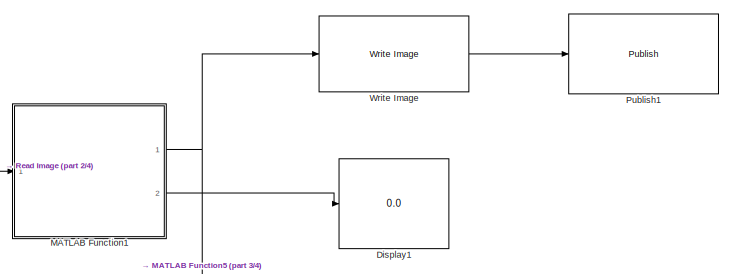
[diagram: root canvas - part 1/4, top center region]
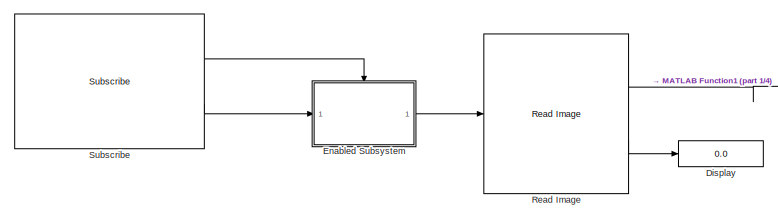
[diagram: root canvas - part 2/4, top left region]
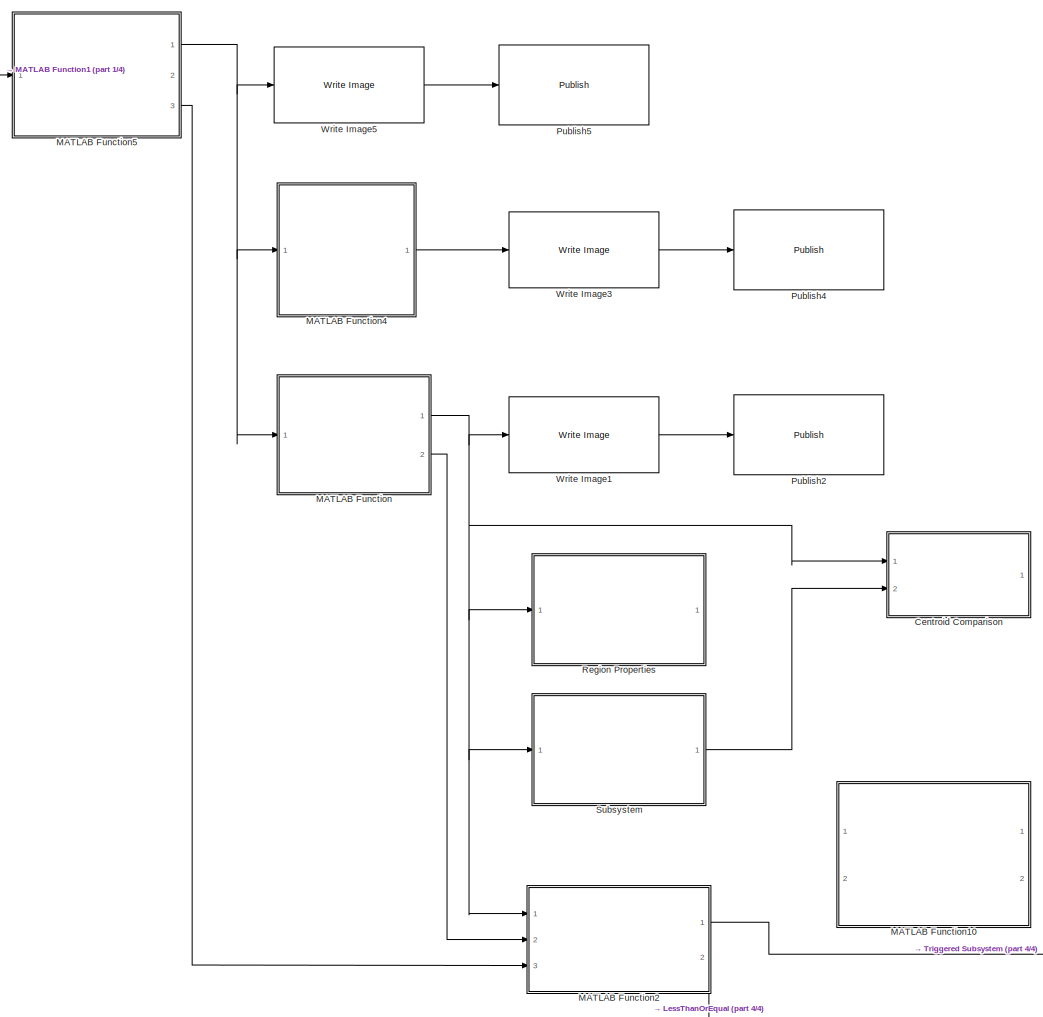
[diagram: root canvas - part 3/4, central region]
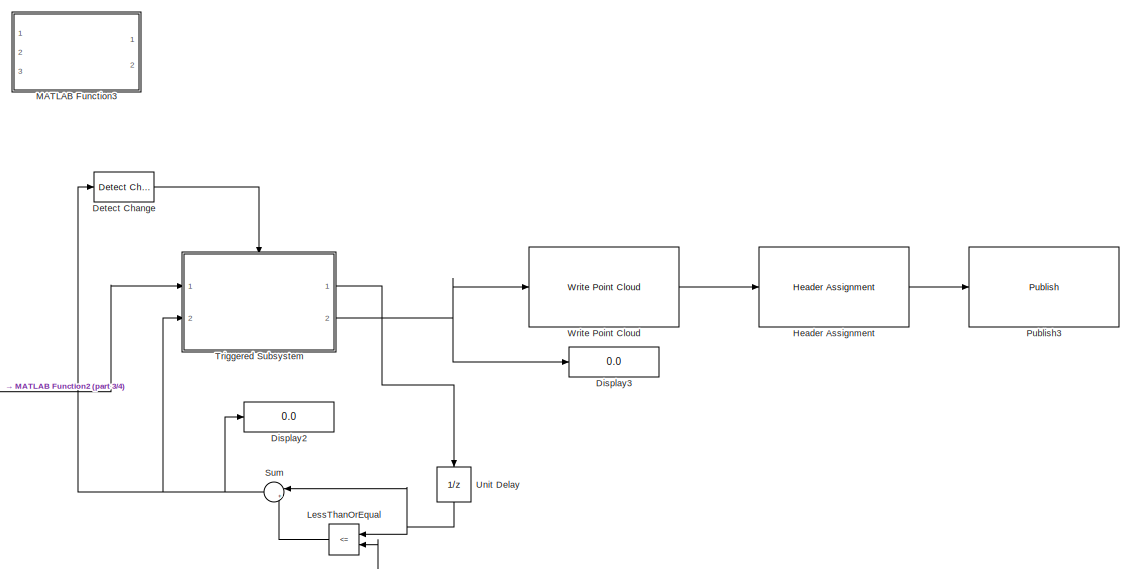
[diagram: root canvas - part 4/4, bottom right region]
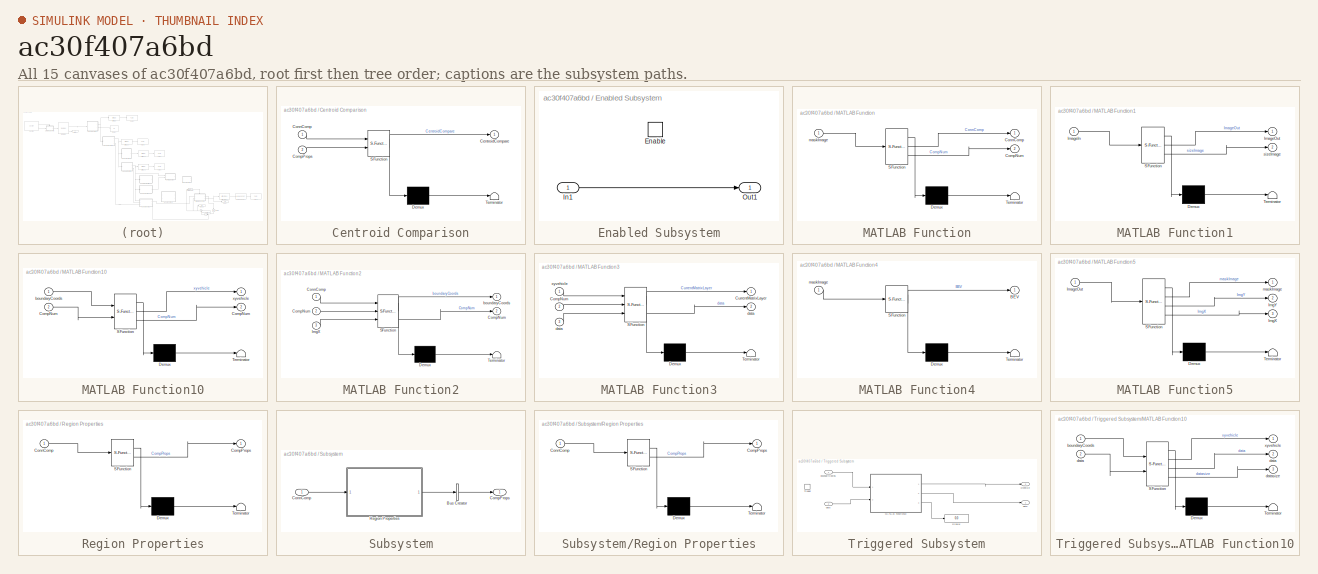
[diagram: thumbnail index - all 15 canvases of the model, root first then tree order]
MODEL slx_ac30f407a6bd
KIND model
CONFIG AbsTol = auto
CONFIG EnableMultiTasking = off
CONFIG FixedStep = auto
CONFIG MaxStep = auto
CONFIG MinStep = auto
CONFIG RelTol = 1e-3
CONFIG SampleTimeConstraint = Unconstrained
CONFIG SolverName = VariableStepAuto
CONFIG StartTime = 0.0
CONFIG StopTime = inf
WORKSPACE source: mxarray member
WORKSPACE SL_ROS_VariableLengthArrays_MaxSizes: object (value not decoded)
BLOCK [SubSystem] Centroid Comparison
  Commented = on
  ErrorFcn = Stateflow.Translate.translate
  PermitHierarchicalResolution = ExplicitOnly
  Ports = [2, 1]
  RequestExecContextInheritance = off
  SFBlockType = MATLAB Function
  TreatAsAtomicUnit = on
BLOCK [Demux] Centroid Comparison/ Demux 
  Outputs = 1
  Ports = [1, 1]
BLOCK [S-Function] Centroid Comparison/ SFunction 
  EnableBusSupport = on
  FunctionName = sf_sfun
  PortCounts = [2 2]
  Ports = [2, 2]
  SFcnIsStateOwnerBlock = off
  SFunctionDeploymentMode = off
  Tag = Stateflow S-Function 6
BLOCK [Terminator] Centroid Comparison/ Terminator 
BLOCK [Outport] Centroid Comparison/CentroidCompare
BLOCK [Inport] Centroid Comparison/CompProps
  Port = 2
BLOCK [Inport] Centroid Comparison/ConnComp
BLOCK [Reference] Detect Change  REF=simulink/Logic and Bit
Operations/Detect
Change
  Ports = [1, 1]
  SourceBlock = simulink/Logic and Bit\nOperations/Detect\nChange
  SourceProductBaseCode = SL
  SourceType = Detect Change
BLOCK [Display] Display
  Decimation = 1
  Ports = [1]
BLOCK [Display] Display1
  Decimation = 1
  Ports = [1]
BLOCK [Display] Display2
  Decimation = 1
  Ports = [1]
BLOCK [Display] Display3
  Decimation = 1
  Ports = [1]
BLOCK [SubSystem] Enabled Subsystem
  Ports = [1, 1, 1]
  RequestExecContextInheritance = off
  TreatAsAtomicUnit = on
BLOCK [EnablePort] Enabled Subsystem/Enable
  Ports = []
BLOCK [Inport] Enabled Subsystem/In1
BLOCK [Outport] Enabled Subsystem/Out1
BLOCK [Reference] Header Assignment  REF=robotlib/Header Assignment
  Ports = [1, 1]
  SourceBlock = robotlib/Header Assignment
  SourceProductBaseCode = RR
  SourceType = ROS Header
BLOCK [RelationalOperator] LessThanOrEqual
  InputSameDT = off
  NameLocation = top
  Operator = <=
  OutDataTypeStr = boolean
  Ports = [2, 1]
  RndMeth = Simplest
BLOCK [SubSystem] MATLAB Function
  ErrorFcn = Stateflow.Translate.translate
  PermitHierarchicalResolution = ExplicitOnly
  Ports = [1, 2]
  RequestExecContextInheritance = off
  SFBlockType = MATLAB Function
  TreatAsAtomicUnit = on
BLOCK [Demux] MATLAB Function/ Demux 
  Outputs = 1
  Ports = [1, 1]
BLOCK [S-Function] MATLAB Function/ SFunction 
  EnableBusSupport = on
  FunctionName = sf_sfun
  PortCounts = [1 3]
  Ports = [1, 3]
  SFcnIsStateOwnerBlock = off
  SFunctionDeploymentMode = off
  Tag = Stateflow S-Function 4
BLOCK [Terminator] MATLAB Function/ Terminator 
BLOCK [Outport] MATLAB Function/CompNum
  Port = 2
BLOCK [Outport] MATLAB Function/ConnComp
BLOCK [Inport] MATLAB Function/maskImage
BLOCK [SubSystem] MATLAB Function1
  ErrorFcn = Stateflow.Translate.translate
  PermitHierarchicalResolution = ExplicitOnly
  Ports = [1, 2]
  RequestExecContextInheritance = off
  SFBlockType = MATLAB Function
  TreatAsAtomicUnit = on
BLOCK [Demux] MATLAB Function1/ Demux 
  Outputs = 1
  Ports = [1, 1]
BLOCK [S-Function] MATLAB Function1/ SFunction 
  EnableBusSupport = on
  FunctionName = sf_sfun
  PortCounts = [1 3]
  Ports = [1, 3]
  SFcnIsStateOwnerBlock = off
  SFunctionDeploymentMode = off
  Tag = Stateflow S-Function 1
BLOCK [Terminator] MATLAB Function1/ Terminator 
BLOCK [Inport] MATLAB Function1/ImageIn
BLOCK [Outport] MATLAB Function1/ImageOut
BLOCK [Outport] MATLAB Function1/sizeImage
  Port = 2
BLOCK [SubSystem] MATLAB Function10
  Commented = on
  ErrorFcn = Stateflow.Translate.translate
  PermitHierarchicalResolution = ExplicitOnly
  Ports = [2, 2]
  RequestExecContextInheritance = off
  SFBlockType = MATLAB Function
  TreatAsAtomicUnit = on
BLOCK [Demux] MATLAB Function10/ Demux 
  Outputs = 1
  Ports = [1, 1]
BLOCK [S-Function] MATLAB Function10/ SFunction 
  EnableBusSupport = on
  FunctionName = sf_sfun
  PortCounts = [2 3]
  Ports = [2, 3]
  SFcnIsStateOwnerBlock = off
  SFunctionDeploymentMode = off
  Tag = Stateflow S-Function 11
BLOCK [Terminator] MATLAB Function10/ Terminator 
BLOCK [Outport] MATLAB Function10/CompNum
  Port = 2
BLOCK [Inport] MATLAB Function10/CompNum 
  Port = 2
BLOCK [Inport] MATLAB Function10/boundaryCoords
BLOCK [Outport] MATLAB Function10/xyvehicle
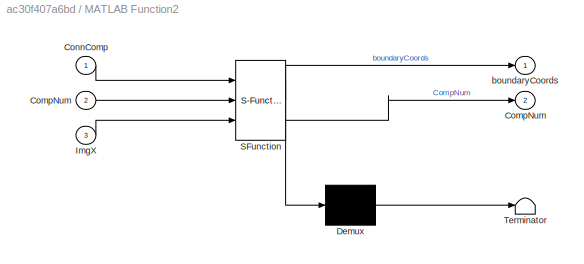
BLOCK [SubSystem] MATLAB Function2
  ErrorFcn = Stateflow.Translate.translate
  PermitHierarchicalResolution = ExplicitOnly
  Ports = [3, 2]
  RequestExecContextInheritance = off
  SFBlockType = MATLAB Function
  TreatAsAtomicUnit = on
BLOCK [Demux] MATLAB Function2/ Demux 
  Outputs = 1
  Ports = [1, 1]
BLOCK [S-Function] MATLAB Function2/ SFunction 
  EnableBusSupport = on
  FunctionName = sf_sfun
  PortCounts = [3 3]
  Ports = [3, 3]
  SFcnIsStateOwnerBlock = off
  SFunctionDeploymentMode = off
  Tag = Stateflow S-Function 8
BLOCK [Terminator] MATLAB Function2/ Terminator 
BLOCK [Outport] MATLAB Function2/CompNum
  Port = 2
BLOCK [Inport] MATLAB Function2/CompNum 
  Port = 2
BLOCK [Inport] MATLAB Function2/ConnComp
BLOCK [Inport] MATLAB Function2/ImgX
  Port = 3
BLOCK [Outport] MATLAB Function2/boundaryCoords
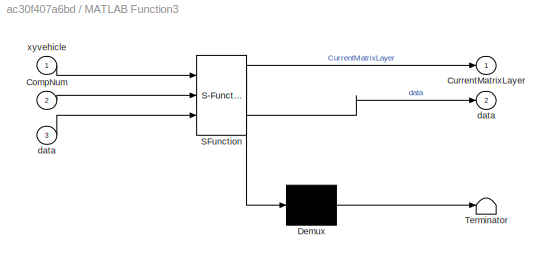
BLOCK [SubSystem] MATLAB Function3
  Commented = on
  ErrorFcn = Stateflow.Translate.translate
  PermitHierarchicalResolution = ExplicitOnly
  Ports = [3, 2]
  RequestExecContextInheritance = off
  SFBlockType = MATLAB Function
  TreatAsAtomicUnit = on
BLOCK [Demux] MATLAB Function3/ Demux 
  Outputs = 1
  Ports = [1, 1]
BLOCK [S-Function] MATLAB Function3/ SFunction 
  EnableBusSupport = on
  FunctionName = sf_sfun
  PortCounts = [3 3]
  Ports = [3, 3]
  SFcnIsStateOwnerBlock = off
  SFunctionDeploymentMode = off
  Tag = Stateflow S-Function 9
BLOCK [Terminator] MATLAB Function3/ Terminator 
BLOCK [Inport] MATLAB Function3/CompNum
  Port = 2
BLOCK [Outport] MATLAB Function3/CurrentMatrixLayer
BLOCK [Outport] MATLAB Function3/data
  Port = 2
BLOCK [Inport] MATLAB Function3/data 
  Port = 3
BLOCK [Inport] MATLAB Function3/xyvehicle
BLOCK [SubSystem] MATLAB Function4
  ErrorFcn = Stateflow.Translate.translate
  PermitHierarchicalResolution = ExplicitOnly
  Ports = [1, 1]
  RequestExecContextInheritance = off
  SFBlockType = MATLAB Function
  TreatAsAtomicUnit = on
BLOCK [Demux] MATLAB Function4/ Demux 
  Outputs = 1
  Ports = [1, 1]
BLOCK [S-Function] MATLAB Function4/ SFunction 
  EnableBusSupport = on
  FunctionName = sf_sfun
  PortCounts = [1 2]
  Ports = [1, 2]
  SFcnIsStateOwnerBlock = off
  SFunctionDeploymentMode = off
  Tag = Stateflow S-Function 2
BLOCK [Terminator] MATLAB Function4/ Terminator 
BLOCK [Outport] MATLAB Function4/BEV
BLOCK [Inport] MATLAB Function4/maskImage
BLOCK [SubSystem] MATLAB Function5
  ErrorFcn = Stateflow.Translate.translate
  PermitHierarchicalResolution = ExplicitOnly
  Ports = [1, 3]
  RequestExecContextInheritance = off
  SFBlockType = MATLAB Function
  TreatAsAtomicUnit = on
BLOCK [Demux] MATLAB Function5/ Demux 
  Outputs = 1
  Ports = [1, 1]
BLOCK [S-Function] MATLAB Function5/ SFunction 
  EnableBusSupport = on
  FunctionName = sf_sfun
  PortCounts = [1 4]
  Ports = [1, 4]
  SFcnIsStateOwnerBlock = off
  SFunctionDeploymentMode = off
  Tag = Stateflow S-Function 5
BLOCK [Terminator] MATLAB Function5/ Terminator 
BLOCK [Inport] MATLAB Function5/ImageOut
BLOCK [Outport] MATLAB Function5/ImgX
  Port = 3
BLOCK [Outport] MATLAB Function5/ImgY
  Port = 2
BLOCK [Outport] MATLAB Function5/maskImage
BLOCK [Reference] Publish1  REF=robotlib/Publish
  Ports = [1]
  SourceBlock = robotlib/Publish
  SourceProductBaseCode = RR
  SourceType = ROS Publish
BLOCK [Reference] Publish2  REF=robotlib/Publish
  Commented = on
  Ports = [1]
  SourceBlock = robotlib/Publish
  SourceProductBaseCode = RR
  SourceType = ROS Publish
BLOCK [Reference] Publish3  REF=robotlib/Publish
  Ports = [1]
  SourceBlock = robotlib/Publish
  SourceProductBaseCode = RR
  SourceType = ROS Publish
BLOCK [Reference] Publish4  REF=robotlib/Publish
  Ports = [1]
  SourceBlock = robotlib/Publish
  SourceProductBaseCode = RR
  SourceType = ROS Publish
BLOCK [Reference] Publish5  REF=robotlib/Publish
  Ports = [1]
  SourceBlock = robotlib/Publish
  SourceProductBaseCode = RR
  SourceType = ROS Publish
BLOCK [Reference] Read Image  REF=robotlib/Read Image
  Ports = [1, 2]
  SourceBlock = robotlib/Read Image
  SourceProductBaseCode = RR
  SourceType = ros.slros.internal.block.ReadImage
BLOCK [SubSystem] Region Properties
  Commented = on
  ErrorFcn = Stateflow.Translate.translate
  PermitHierarchicalResolution = ExplicitOnly
  Ports = [1, 1]
  RequestExecContextInheritance = off
  SFBlockType = MATLAB Function
  TreatAsAtomicUnit = on
BLOCK [Demux] Region Properties/ Demux 
  Outputs = 1
  Ports = [1, 1]
BLOCK [S-Function] Region Properties/ SFunction 
  EnableBusSupport = on
  FunctionName = sf_sfun
  PortCounts = [1 2]
  Ports = [1, 2]
  SFcnIsStateOwnerBlock = off
  SFunctionDeploymentMode = off
  Tag = Stateflow S-Function 3
BLOCK [Terminator] Region Properties/ Terminator 
BLOCK [Outport] Region Properties/CompProps
BLOCK [Inport] Region Properties/ConnComp
BLOCK [Reference] Subscribe  REF=robotlib/Subscribe
  Ports = [0, 2]
  SourceBlock = robotlib/Subscribe
  SourceProductBaseCode = RR
  SourceType = ROS Subscribe
BLOCK [SubSystem] Subsystem
  Commented = on
  Ports = [1, 1]
  RequestExecContextInheritance = off
BLOCK [BusCreator] Subsystem/Bus Creator
  DisplayOption = bar
  InheritFromInputs = on
  Inputs = 1
  Ports = [1, 1]
BLOCK [Outport] Subsystem/CompProps
BLOCK [Inport] Subsystem/ConnComp
BLOCK [SubSystem] Subsystem/Region Properties
  ErrorFcn = Stateflow.Translate.translate
  PermitHierarchicalResolution = ExplicitOnly
  Ports = [1, 1]
  RequestExecContextInheritance = off
  SFBlockType = MATLAB Function
  TreatAsAtomicUnit = on
BLOCK [Demux] Subsystem/Region Properties/ Demux 
  Outputs = 1
  Ports = [1, 1]
BLOCK [S-Function] Subsystem/Region Properties/ SFunction 
  EnableBusSupport = on
  FunctionName = sf_sfun
  PortCounts = [1 2]
  Ports = [1, 2]
  SFcnIsStateOwnerBlock = off
  SFunctionDeploymentMode = off
  Tag = Stateflow S-Function 7
BLOCK [Terminator] Subsystem/Region Properties/ Terminator 
BLOCK [Outport] Subsystem/Region Properties/CompProps
BLOCK [Inport] Subsystem/Region Properties/ConnComp
BLOCK [Sum] Sum
  Inputs = |++
  NameLocation = top
  Ports = [2, 1]
BLOCK [SubSystem] Triggered Subsystem
  Ports = [2, 2, 0, 1]
  RequestExecContextInheritance = off
  TreatAsAtomicUnit = on
BLOCK [Display] Triggered Subsystem/Display
  Decimation = 1
  Ports = [1]
BLOCK [SubSystem] Triggered Subsystem/MATLAB Function10
  ErrorFcn = Stateflow.Translate.translate
  PermitHierarchicalResolution = ExplicitOnly
  Ports = [2, 3]
  RequestExecContextInheritance = off
  SFBlockType = MATLAB Function
  TreatAsAtomicUnit = on
BLOCK [Demux] Triggered Subsystem/MATLAB Function10/ Demux 
  Outputs = 1
  Ports = [1, 1]
BLOCK [S-Function] Triggered Subsystem/MATLAB Function10/ SFunction 
  EnableBusSupport = on
  FunctionName = sf_sfun
  PortCounts = [2 4]
  Ports = [2, 4]
  SFcnIsStateOwnerBlock = off
  SFunctionDeploymentMode = off
  Tag = Stateflow S-Function 12
BLOCK [Terminator] Triggered Subsystem/MATLAB Function10/ Terminator 
BLOCK [Inport] Triggered Subsystem/MATLAB Function10/boundaryCoords
BLOCK [Outport] Triggered Subsystem/MATLAB Function10/data
  Port = 2
BLOCK [Inport] Triggered Subsystem/MATLAB Function10/data 
  Port = 2
BLOCK [Outport] Triggered Subsystem/MATLAB Function10/datasize
  Port = 3
BLOCK [Outport] Triggered Subsystem/MATLAB Function10/xyvehicle
BLOCK [TriggerPort] Triggered Subsystem/Trigger
  Ports = []
  StatesWhenEnabling = held
  VariantControl = (inherit)
BLOCK [Inport] Triggered Subsystem/boundaryCoords
BLOCK [Outport] Triggered Subsystem/data
BLOCK [Inport] Triggered Subsystem/data 
  Port = 2
BLOCK [Outport] Triggered Subsystem/xyvehicle
  Port = 2
BLOCK [UnitDelay] Unit Delay
  HasFrameUpgradeWarning = on
  NameLocation = left
  SampleTime = -1
BLOCK [Reference] Write Image  REF=robotlib/Write Image
  Ports = [1, 1]
  SourceBlock = robotlib/Write Image
  SourceProductBaseCode = RR
  SourceType = ROS Write Image
BLOCK [Reference] Write Image1  REF=robotlib/Write Image
  Commented = on
  Ports = [1, 1]
  SourceBlock = robotlib/Write Image
  SourceProductBaseCode = RR
  SourceType = ROS Write Image
BLOCK [Reference] Write Image3  REF=robotlib/Write Image
  Ports = [1, 1]
  SourceBlock = robotlib/Write Image
  SourceProductBaseCode = RR
  SourceType = ROS Write Image
BLOCK [Reference] Write Image5  REF=robotlib/Write Image
  Ports = [1, 1]
  SourceBlock = robotlib/Write Image
  SourceProductBaseCode = RR
  SourceType = ROS Write Image
BLOCK [Reference] Write Point Cloud  REF=robotlib/Write Point Cloud
  Ports = [1, 1]
  SourceBlock = robotlib/Write Point Cloud
  SourceProductBaseCode = RR
  SourceType = ROS Write Point Cloud
LINE Detect Change:1 -> Triggered Subsystem:trigger
LINE Enabled Subsystem/In1:1 -> Enabled Subsystem/Out1:1
LINE Enabled Subsystem:1 -> Read Image:1
LINE Header Assignment:1 -> Publish3:1
LINE LessThanOrEqual:1 -> Sum:2
NET MATLAB Function1:1 -> MATLAB Function5:1, Write Image:1
LINE MATLAB Function1:2 -> Display1:1
LINE MATLAB Function2:1 -> Triggered Subsystem:1
LINE MATLAB Function2:2 -> LessThanOrEqual:2
LINE MATLAB Function4:1 -> Write Image3:1
NET MATLAB Function5:1 -> MATLAB Function4:1, MATLAB Function:1, Write Image5:1
LINE MATLAB Function5:3 -> MATLAB Function2:3
NET MATLAB Function:1 -> Centroid Comparison:1, MATLAB Function2:1, Region Properties:1, Subsystem:1, Write Image1:1
LINE MATLAB Function:2 -> MATLAB Function2:2
LINE Read Image:1 -> MATLAB Function1:1
LINE Read Image:2 -> Display:1
LINE Subscribe:1 -> Enabled Subsystem:enable
LINE Subscribe:2 -> Enabled Subsystem:1
LINE Subsystem/Bus Creator:1 -> Subsystem/CompProps:1
LINE Subsystem/ConnComp:1 -> Subsystem/Region Properties:1
LINE Subsystem/Region Properties:1 -> Subsystem/Bus Creator:1
LINE Subsystem:1 -> Centroid Comparison:2
NET Sum:1 -> Detect Change:1, Display2:1, Triggered Subsystem:2
LINE Triggered Subsystem/MATLAB Function10:1 -> Triggered Subsystem/xyvehicle:1
LINE Triggered Subsystem/MATLAB Function10:2 -> Triggered Subsystem/data:1
LINE Triggered Subsystem/MATLAB Function10:3 -> Triggered Subsystem/Display:1
LINE Triggered Subsystem/boundaryCoords:1 -> Triggered Subsystem/MATLAB Function10:1
LINE Triggered Subsystem/data :1 -> Triggered Subsystem/MATLAB Function10:2
LINE Triggered Subsystem:1 -> Unit Delay:1
NET Triggered Subsystem:2 -> Display3:1, Write Point Cloud:1
NET Unit Delay:1 -> LessThanOrEqual:1, Sum:1
LINE Write Image1:1 -> Publish2:1
LINE Write Image3:1 -> Publish4:1
LINE Write Image5:1 -> Publish5:1
LINE Write Image:1 -> Publish1:1
LINE Write Point Cloud:1 -> Header Assignment:1
note: NET lines group one-source signal fan-out (src -> all destinations, sorted); 1:1 wires keep LINE
CHART Triggered
Subsystem/MATLAB Function10 states=1 transitions=1
  STATE_LABEL 'eML_blk_kernel()'
  STATE_LABEL "SCRIPT:\nfunction [xyvehicle,data, datasize] = image2distance(boundaryCoords, data )\n\nif data~=0\n%#codegen\n\n%xyimageLeft(1,:)=xyimageLeft(1,:);\n%xyimageRight(1,:)=xyimageRight(1,:);\n\n%Transform Road Image to Bird's-Eye-View Image\n%Create a bird's-eye-view image from an image obtained by a front-facing camera mounted on a vehicle. Display points within the bird's-eye view using the vehicle and image...<+2308ch>"
CHART MATLAB Function1 states=1 transitions=1
  STATE_LABEL 'eML_blk_kernel()'
  STATE_LABEL 'SCRIPT:\nfunction [ImageOut,sizeImage] = grayImage(ImageIn)\n\nsizeImage=size(ImageIn);\n\nImageOut=im2uint8(im2gray(ImageIn));\n'
CHART MATLAB Function4 states=1 transitions=1
  STATE_LABEL 'eML_blk_kernel()'
  STATE_LABEL "SCRIPT:\nfunction BEV = BEVimage(maskImage)\n%Transform Road Image to Bird's-Eye-View Image\n%Create a bird's-eye-view image from an image obtained by a front-facing \n% camera mounted on a vehicle. Display points within the bird's-eye view \n% using the vehicle and image coordinate systems.\n%Define the camera intrinsics and create an object containing these intrinsics.\n%focalLength = [309.4362 344.216...<+1495ch>"
CHART Region Properties states=1 transitions=1
  STATE_LABEL 'eML_blk_kernel()'
  STATE_LABEL "SCRIPT:\nfunction CompProps = regionProperties(ConnComp)\n\nCompProps = regionprops(ConnComp, 'all');"
CHART MATLAB Function states=1 transitions=1
  STATE_LABEL 'eML_blk_kernel()'
  STATE_LABEL "SCRIPT:\nfunction [ConnComp,CompNum]= ConnComp(maskImage) \ninitStrel = strel('diamond',3);\nerodeImg = imerode(maskImage, initStrel);\nConnComp = bwareaopen(erodeImg , 2000);%remove components less that 2000 pixels\n\n%use 8 connectivity to have accurate # of comp, we dont need to be\n%filtering in this step\n[CompLabels,CompNum] = bwlabel(ConnComp,8);\n\n\n"
CHART MATLAB Function5 states=1 transitions=1
  STATE_LABEL 'eML_blk_kernel()'
  STATE_LABEL "SCRIPT:\nfunction [maskImage,ImgY, ImgX]= whiteMask(ImageOut) \n[ImgY, ImgX, ColourLayers] = size(ImageOut);\nmaskImage1 = zeros(size(ImageOut,1),size(ImageOut,2));\n\n% %----------------------Define thresholds for 'Hue'---------------------\n %channel1MinW = 200;\n %channel1MaxW = 255;\n% %------------------Define thresholds for 'Saturation'------------------\n% channel2MinW = 200;\n% channel2MaxW = 255;\n%...<+501ch>"
CHART Centroid Comparison states=1 transitions=1
  STATE_LABEL 'eML_blk_kernel()'
  STATE_LABEL 'SCRIPT:\nfunction CentroidCompare = fcn(ConnComp, CompProps)\n\nallCompCentroids = vertcat(CompProps.Centroid);\t\t% A 10 row by 2 column array of (x,y) centroid coordinates.\ncentroidsX = allCompCentroids(:, 1);\t\t\t% Extract out the centroid x values into their own vector.\ncentroidsY = allCompCentroids(:, 2);\n\nBinSize = 10;\nBinNum = ImgX/BinSize;\nBinStart=1;\nBin = 1;\n\nfor BinEnd=BinSize:BinSize:1280\nWhi...<+1344ch>'
CHART Subsystem/Region Properties states=1 transitions=1
  STATE_LABEL 'eML_blk_kernel()'
  STATE_LABEL "SCRIPT:\nfunction CompProps = regionProperties(ConnComp)\n\nCompProps = regionprops(ConnComp, 'all');"
CHART MATLAB Function2 states=1 transitions=1
  STATE_LABEL 'eML_blk_kernel()'
  STATE_LABEL "SCRIPT:\nfunction [boundaryCoords,CompNum]= findBoundaries(ConnComp, CompNum, ImgX)\n\npersistent InitBoundaryCoords\n\n    if isempty(InitBoundaryCoords)\n      InitBoundaryCoords = zeros(2000,2,8);\n      %boundaryCoords = InitBoundaryCoords;\n    end\n\n\n%CompProps = struct('centroid', 0);\n%CompNum = max(CompLabels,[],'all','linear');\n\nCompProps = regionprops(ConnComp, 'All');\n%ERROR: accessing field or ...<+3037ch>"
CHART MATLAB Function3 states=1 transitions=1
  STATE_LABEL 'eML_blk_kernel()'
  STATE_LABEL 'SCRIPT:\nfunction [CurrentMatrixLayer, data]= fcn(xyvehicle, CompNum, data)\n\nfor i=1: data: '
CHART MATLAB Function10 states=1 transitions=1
  STATE_LABEL 'eML_blk_kernel()'
  STATE_LABEL "SCRIPT:\nfunction [xyvehicle,CompNum] = image2distance(boundaryCoords, CompNum)\n%#codegen\n\n%xyimageLeft(1,:)=xyimageLeft(1,:);\n%xyimageRight(1,:)=xyimageRight(1,:);\n\n%Transform Road Image to Bird's-Eye-View Image\n%Create a bird's-eye-view image from an image obtained by a front-facing camera mounted on a vehicle. Display points within the bird's-eye view using the vehicle and image coordinate syste...<+2269ch>"
CHART  states=0 transitions=0
CHART  states=0 transitions=0
CHART  states=0 transitions=0
CHART  states=0 transitions=0
CHART  states=0 transitions=0
CHART  states=0 transitions=0
CHART  states=0 transitions=0
CHART  states=0 transitions=0
CHART  states=0 transitions=0
CHART  states=0 transitions=0
CHART  states=0 transitions=0
